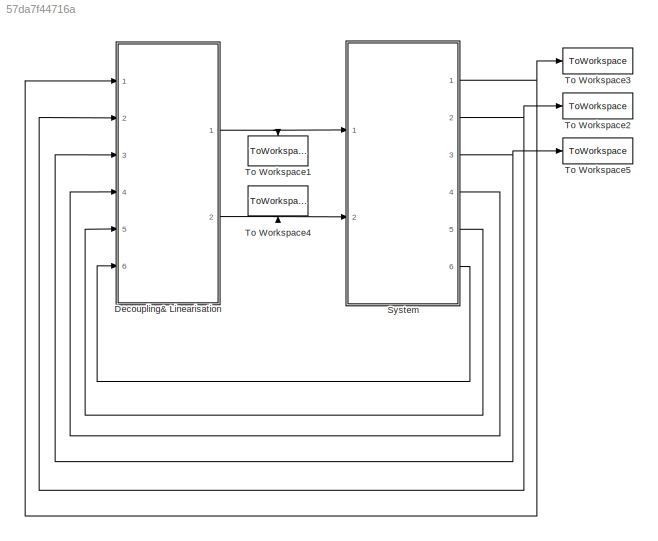
MODEL slx_57da7f44716a
KIND model
CONFIG AbsTol = auto
CONFIG EnableMultiTasking = off
CONFIG FixedStep = 0.001
CONFIG MaxStep = auto
CONFIG MinStep = auto
CONFIG RelTol = 1e-3
CONFIG SampleTimeConstraint = Unconstrained
CONFIG Solver = VariableStepAuto
CONFIG SolverName = VariableStepAuto
CONFIG StartTime = 0.0
CONFIG StopTime = 20.0
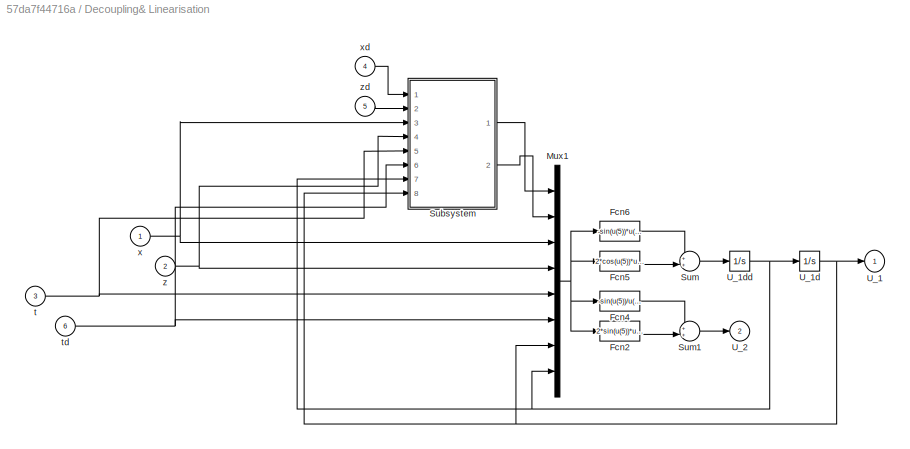
BLOCK [SubSystem] Decoupling& Linearisation
  Ports = [6, 2]
  RequestExecContextInheritance = off
  ShowPortLabels = SignalName
  Variant = off
BLOCK [Fcn] Decoupling& Linearisation/Fcn2
  Expr = 2*sin(u(5))*u(8)*u(6) +u(7)*cos(u(5))*u(6)^2
BLOCK [Fcn] Decoupling& Linearisation/Fcn4
  Expr = -sin(u(5))/u(7)*u(2)-cos(u(5))/u(7)*u(1)
BLOCK [Fcn] Decoupling& Linearisation/Fcn5
  Expr = 2*cos(u(5))*u(8)*u(6) -u(7)*sin(u(5))*u(6)^2
BLOCK [Fcn] Decoupling& Linearisation/Fcn6
  Expr = -sin(u(5))*u(1) +cos(u(5))*u(2)
BLOCK [Mux] Decoupling& Linearisation/Mux1
  DisplayOption = bar
  Inputs = 8
  Ports = [8, 1]
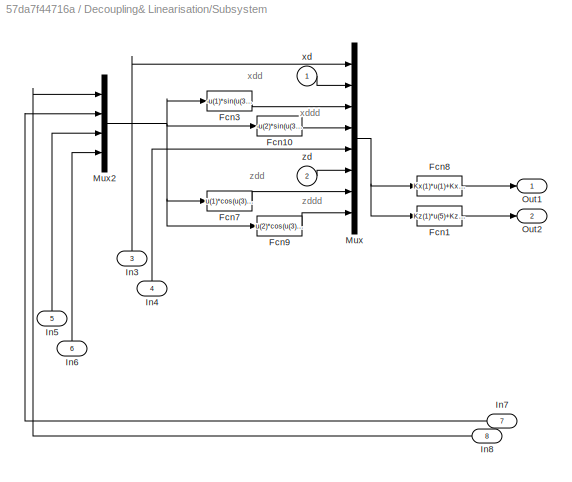
BLOCK [SubSystem] Decoupling& Linearisation/Subsystem
  Ports = [8, 2]
  RequestExecContextInheritance = off
  Variant = off
BLOCK [Fcn] Decoupling& Linearisation/Subsystem/Fcn1
  Expr = Kz(1)*u(5)+Kz(2)*u(6)+Kz(3)*u(7)+Kz(4)*u(8)
BLOCK [Fcn] Decoupling& Linearisation/Subsystem/Fcn10
  Expr = -u(2)*sin(u(3))-cos(u(3))*u(1)*u(4)
BLOCK [Fcn] Decoupling& Linearisation/Subsystem/Fcn3
  Expr = -u(1)*sin(u(3))
BLOCK [Fcn] Decoupling& Linearisation/Subsystem/Fcn7
  Expr = u(1)*cos(u(3))-1
BLOCK [Fcn] Decoupling& Linearisation/Subsystem/Fcn8
  Expr = Kx(1)*u(1)+Kx(2)*u(2)+Kx(3)*u(3)+Kx(4)*u(4)
BLOCK [Fcn] Decoupling& Linearisation/Subsystem/Fcn9
  Expr = u(2)*cos(u(3))-sin(u(3))*u(1)*u(4)
BLOCK [Inport] Decoupling& Linearisation/Subsystem/In3
  IconDisplay = Port number
  Port = 3
BLOCK [Inport] Decoupling& Linearisation/Subsystem/In4
  IconDisplay = Port number
  Port = 4
BLOCK [Inport] Decoupling& Linearisation/Subsystem/In5
  IconDisplay = Port number
  Port = 5
BLOCK [Inport] Decoupling& Linearisation/Subsystem/In6
  IconDisplay = Port number
  Port = 6
BLOCK [Inport] Decoupling& Linearisation/Subsystem/In7
  IconDisplay = Port number
  Port = 7
BLOCK [Inport] Decoupling& Linearisation/Subsystem/In8
  IconDisplay = Port number
  Port = 8
BLOCK [Mux] Decoupling& Linearisation/Subsystem/Mux
  DisplayOption = bar
  Inputs = 8
  Ports = [8, 1]
BLOCK [Mux] Decoupling& Linearisation/Subsystem/Mux2
  DisplayOption = bar
  Ports = [4, 1]
BLOCK [Outport] Decoupling& Linearisation/Subsystem/Out1
  IconDisplay = Port number
BLOCK [Outport] Decoupling& Linearisation/Subsystem/Out2
  IconDisplay = Port number
  Port = 2
BLOCK [Inport] Decoupling& Linearisation/Subsystem/xd
  IconDisplay = Port number
BLOCK [Inport] Decoupling& Linearisation/Subsystem/zd
  IconDisplay = Port number
  Port = 2
BLOCK [Sum] Decoupling& Linearisation/Sum
  IconShape = round
  InputSameDT = off
  Inputs = ++|
  OutDataTypeStr = Inherit: Inherit via internal rule
  Ports = [2, 1]
  SaturateOnIntegerOverflow = off
BLOCK [Sum] Decoupling& Linearisation/Sum1
  IconShape = round
  InputSameDT = off
  Inputs = ++|
  OutDataTypeStr = Inherit: Inherit via internal rule
  Ports = [2, 1]
  SaturateOnIntegerOverflow = off
BLOCK [Outport] Decoupling& Linearisation/U_1
  IconDisplay = Port number
BLOCK [Integrator] Decoupling& Linearisation/U_1d
  InitialCondition = 1
  Ports = [1, 1]
BLOCK [Integrator] Decoupling& Linearisation/U_1dd
  Ports = [1, 1]
BLOCK [Outport] Decoupling& Linearisation/U_2
  IconDisplay = Port number
  Port = 2
BLOCK [Inport] Decoupling& Linearisation/t 
  IconDisplay = Port number
  Port = 3
BLOCK [Inport] Decoupling& Linearisation/td
  IconDisplay = Port number
  Port = 6
BLOCK [Inport] Decoupling& Linearisation/x
  IconDisplay = Port number
BLOCK [Inport] Decoupling& Linearisation/xd
  IconDisplay = Port number
  Port = 4
BLOCK [Inport] Decoupling& Linearisation/z
  IconDisplay = Port number
  Port = 2
BLOCK [Inport] Decoupling& Linearisation/zd
  IconDisplay = Port number
  Port = 5
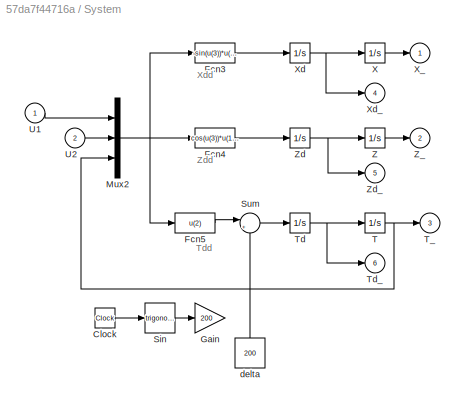
BLOCK [SubSystem] System
  Ports = [2, 6]
  RequestExecContextInheritance = off
  ShowPortLabels = SignalName
  Variant = off
BLOCK [Clock] System/Clock
  Commented = on
BLOCK [Fcn] System/Fcn3
  Expr = -sin(u(3))*u(1)
BLOCK [Fcn] System/Fcn4
  Expr = cos(u(3))*u(1)-1
BLOCK [Fcn] System/Fcn5
  Expr = u(2)
BLOCK [Gain] System/Gain
  Commented = on
  Gain = 200
  OutDataTypeStr = Inherit: Inherit via internal rule
  ParamDataTypeStr = Inherit: Inherit via internal rule
  SaturateOnIntegerOverflow = off
BLOCK [Mux] System/Mux2
  DisplayOption = bar
  Inputs = 3
  Ports = [3, 1]
BLOCK [Trigonometry] System/Sin
  Commented = on
  Ports = [1, 1]
BLOCK [Sum] System/Sum
  IconShape = round
  InputSameDT = off
  Inputs = |++
  OutDataTypeStr = Inherit: Inherit via internal rule
  Ports = [2, 1]
  SaturateOnIntegerOverflow = off
BLOCK [Integrator] System/T
  InitialCondition = 1
  Ports = [1, 1]
BLOCK [Outport] System/T_
  IconDisplay = Port number
  Port = 3
BLOCK [Integrator] System/Td
  InitialCondition = 1
  Ports = [1, 1]
BLOCK [Outport] System/Td_
  IconDisplay = Port number
  Port = 6
BLOCK [Inport] System/U1 
  IconDisplay = Port number
BLOCK [Inport] System/U2
  IconDisplay = Port number
  Port = 2
BLOCK [Integrator] System/X
  InitialCondition = 1
  Ports = [1, 1]
BLOCK [Outport] System/X_
  IconDisplay = Port number
BLOCK [Integrator] System/Xd
  Ports = [1, 1]
BLOCK [Outport] System/Xd_
  IconDisplay = Port number
  Port = 4
BLOCK [Integrator] System/Z
  InitialCondition = 1
  Ports = [1, 1]
BLOCK [Outport] System/Z_ 
  IconDisplay = Port number
  Port = 2
BLOCK [Integrator] System/Zd
  Ports = [1, 1]
BLOCK [Outport] System/Zd_
  IconDisplay = Port number
  Port = 5
BLOCK [Constant] System/delta
  Value = 200
BLOCK [ToWorkspace] To Workspace1
  MaxDataPoints = inf
  Ports = [1]
  SampleTime = -1
  VariableName = u1
BLOCK [ToWorkspace] To Workspace2
  MaxDataPoints = inf
  Ports = [1]
  SampleTime = -1
  VariableName = z
BLOCK [ToWorkspace] To Workspace3
  MaxDataPoints = inf
  Ports = [1]
  SampleTime = -1
  VariableName = x
BLOCK [ToWorkspace] To Workspace4
  MaxDataPoints = inf
  Ports = [1]
  SampleTime = -1
  VariableName = u2
BLOCK [ToWorkspace] To Workspace5
  MaxDataPoints = inf
  Ports = [1]
  SampleTime = -1
  VariableName = theta
ANNOTATION Decoupling& Linearisation/Subsystem: xdd
ANNOTATION Decoupling& Linearisation/Subsystem: xddd
ANNOTATION Decoupling& Linearisation/Subsystem: zdd
ANNOTATION Decoupling& Linearisation/Subsystem: zddd
ANNOTATION System: Tdd
ANNOTATION System: Xdd
ANNOTATION System: Zdd
LINE Decoupling& Linearisation/Fcn2:1 -> Decoupling& Linearisation/Sum1:2
LINE Decoupling& Linearisation/Fcn4:1 -> Decoupling& Linearisation/Sum1:1
LINE Decoupling& Linearisation/Fcn5:1 -> Decoupling& Linearisation/Sum:2
LINE Decoupling& Linearisation/Fcn6:1 -> Decoupling& Linearisation/Sum:1
NET Decoupling& Linearisation/Mux1:1 -> Decoupling& Linearisation/Fcn2:1, Decoupling& Linearisation/Fcn4:1, Decoupling& Linearisation/Fcn5:1, Decoupling& Linearisation/Fcn6:1
LINE Decoupling& Linearisation/Subsystem/Fcn10:1 -> Decoupling& Linearisation/Subsystem/Mux:4
LINE Decoupling& Linearisation/Subsystem/Fcn1:1 -> Decoupling& Linearisation/Subsystem/Out2:1
LINE Decoupling& Linearisation/Subsystem/Fcn3:1 -> Decoupling& Linearisation/Subsystem/Mux:3
LINE Decoupling& Linearisation/Subsystem/Fcn7:1 -> Decoupling& Linearisation/Subsystem/Mux:7
LINE Decoupling& Linearisation/Subsystem/Fcn8:1 -> Decoupling& Linearisation/Subsystem/Out1:1
LINE Decoupling& Linearisation/Subsystem/Fcn9:1 -> Decoupling& Linearisation/Subsystem/Mux:8
LINE Decoupling& Linearisation/Subsystem/In3:1 -> Decoupling& Linearisation/Subsystem/Mux:1
LINE Decoupling& Linearisation/Subsystem/In4:1 -> Decoupling& Linearisation/Subsystem/Mux:5
LINE Decoupling& Linearisation/Subsystem/In5:1 -> Decoupling& Linearisation/Subsystem/Mux2:3
LINE Decoupling& Linearisation/Subsystem/In6:1 -> Decoupling& Linearisation/Subsystem/Mux2:4
LINE Decoupling& Linearisation/Subsystem/In7:1 -> Decoupling& Linearisation/Subsystem/Mux2:2
LINE Decoupling& Linearisation/Subsystem/In8:1 -> Decoupling& Linearisation/Subsystem/Mux2:1
NET Decoupling& Linearisation/Subsystem/Mux2:1 -> Decoupling& Linearisation/Subsystem/Fcn10:1, Decoupling& Linearisation/Subsystem/Fcn3:1, Decoupling& Linearisation/Subsystem/Fcn7:1, Decoupling& Linearisation/Subsystem/Fcn9:1
NET Decoupling& Linearisation/Subsystem/Mux:1 -> Decoupling& Linearisation/Subsystem/Fcn1:1, Decoupling& Linearisation/Subsystem/Fcn8:1
LINE Decoupling& Linearisation/Subsystem/xd:1 -> Decoupling& Linearisation/Subsystem/Mux:2
LINE Decoupling& Linearisation/Subsystem/zd:1 -> Decoupling& Linearisation/Subsystem/Mux:6
LINE Decoupling& Linearisation/Subsystem:1 -> Decoupling& Linearisation/Mux1:1
LINE Decoupling& Linearisation/Subsystem:2 -> Decoupling& Linearisation/Mux1:2
LINE Decoupling& Linearisation/Sum1:1 -> Decoupling& Linearisation/U_2:1
LINE Decoupling& Linearisation/Sum:1 -> Decoupling& Linearisation/U_1dd:1
NET Decoupling& Linearisation/U_1d:1 -> Decoupling& Linearisation/Mux1:7, Decoupling& Linearisation/Subsystem:8, Decoupling& Linearisation/U_1:1
NET Decoupling& Linearisation/U_1dd:1 -> Decoupling& Linearisation/Mux1:8, Decoupling& Linearisation/Subsystem:7, Decoupling& Linearisation/U_1d:1
NET Decoupling& Linearisation/t :1 -> Decoupling& Linearisation/Mux1:5, Decoupling& Linearisation/Subsystem:5
NET Decoupling& Linearisation/td:1 -> Decoupling& Linearisation/Mux1:6, Decoupling& Linearisation/Subsystem:6
NET Decoupling& Linearisation/x:1 -> Decoupling& Linearisation/Mux1:3, Decoupling& Linearisation/Subsystem:3
LINE Decoupling& Linearisation/xd:1 -> Decoupling& Linearisation/Subsystem:1
NET Decoupling& Linearisation/z:1 -> Decoupling& Linearisation/Mux1:4, Decoupling& Linearisation/Subsystem:4
LINE Decoupling& Linearisation/zd:1 -> Decoupling& Linearisation/Subsystem:2
NET Decoupling& Linearisation:1 -> System:1, To Workspace1:1
NET Decoupling& Linearisation:2 -> System:2, To Workspace4:1
LINE System/Clock:1 -> System/Sin:1
LINE System/Fcn3:1 -> System/Xd:1
LINE System/Fcn4:1 -> System/Zd:1
LINE System/Fcn5:1 -> System/Sum:1
NET System/Mux2:1 -> System/Fcn3:1, System/Fcn4:1, System/Fcn5:1
LINE System/Sin:1 -> System/Gain:1
LINE System/Sum:1 -> System/Td:1
NET System/T:1 -> System/Mux2:3, System/T_:1
NET System/Td:1 -> System/T:1, System/Td_:1
LINE System/U1 :1 -> System/Mux2:1
LINE System/U2:1 -> System/Mux2:2
LINE System/X:1 -> System/X_:1
NET System/Xd:1 -> System/X:1, System/Xd_:1
LINE System/Z:1 -> System/Z_ :1
NET System/Zd:1 -> System/Z:1, System/Zd_:1
LINE System/delta:1 -> System/Sum:2
NET System:1 -> Decoupling& Linearisation:1, To Workspace3:1
NET System:2 -> Decoupling& Linearisation:2, To Workspace2:1
NET System:3 -> Decoupling& Linearisation:3, To Workspace5:1
LINE System:4 -> Decoupling& Linearisation:4
LINE System:5 -> Decoupling& Linearisation:5
LINE System:6 -> Decoupling& Linearisation:6
note: NET lines group one-source signal fan-out (src -> all destinations, sorted); 1:1 wires keep LINE
